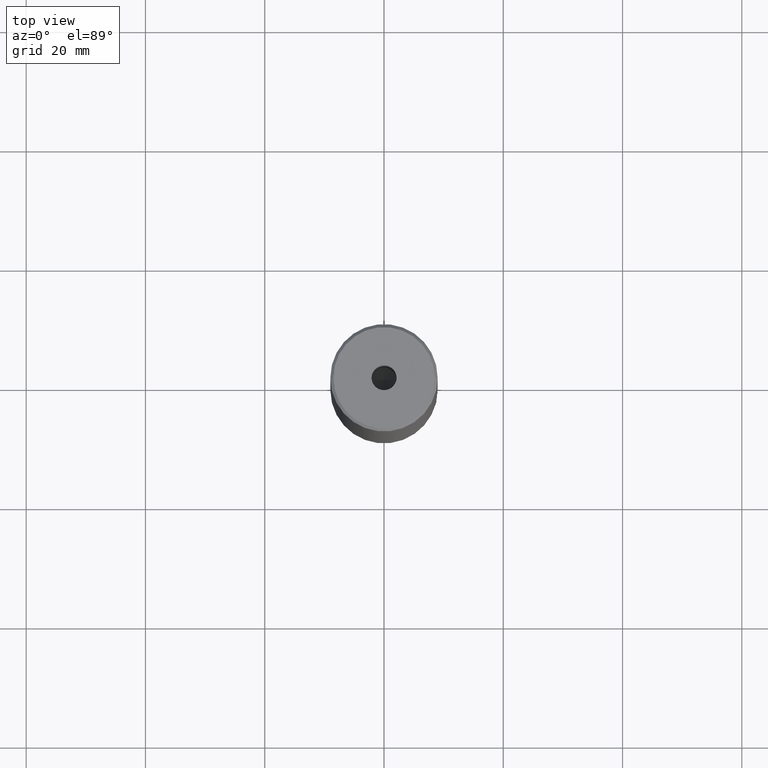
[diagram: clean part render]
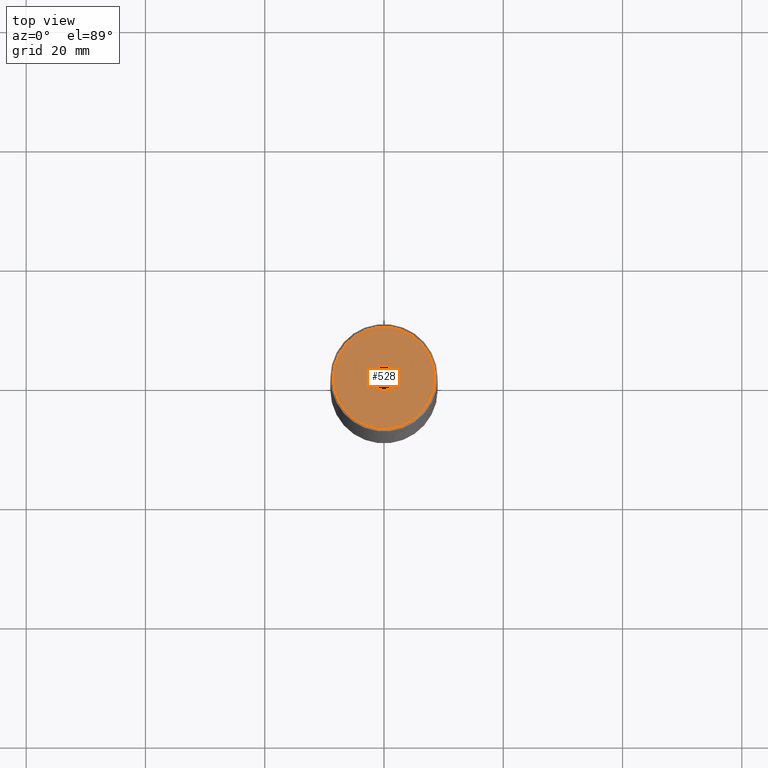
[diagram: same view with one face highlighted and labeled with its STEP entity id]
A machine part, top view. The second image highlights one B-rep face of the part: STEP entity #528.
In plain terms, the highlighted planar face has unit normal (0, -0, 1).
Its self-contained STEP definition (entity closure, byte-faithful):
#20 = EDGE_CURVE ( 'NONE', #493, #152, #571, .T. ) ;
#40 = AXIS2_PLACEMENT_3D ( 'NONE', #140, #500, #90 ) ;
#66 = CARTESIAN_POINT ( 'NONE',  ( 0.000000000000000000, 0.000000000000000000, -1.990051048614449116E-16 ) ) ;
#81 = ORIENTED_EDGE ( 'NONE', *, *, #442, .T. ) ;
#90 = DIRECTION ( 'NONE',  ( 1.000000000000000000, 0.000000000000000000, 0.000000000000000000 ) ) ;
#100 = EDGE_LOOP ( 'NONE', ( #120, #336 ) ) ;
#109 = DIRECTION ( 'NONE',  ( 1.000000000000000000, 0.000000000000000000, 0.000000000000000000 ) ) ;
#120 = ORIENTED_EDGE ( 'NONE', *, *, #285, .F. ) ;
#129 = CARTESIAN_POINT ( 'NONE',  ( 0.000000000000000000, 0.000000000000000000, 0.000000000000000000 ) ) ;
#139 = DIRECTION ( 'NONE',  ( 1.000000000000000000, 0.000000000000000000, 0.000000000000000000 ) ) ;
#140 = CARTESIAN_POINT ( 'NONE',  ( 0.000000000000000000, 0.000000000000000000, 0.000000000000000000 ) ) ;
#152 = VERTEX_POINT ( 'NONE', #236 ) ;
#153 = CIRCLE ( 'NONE', #234, 8.499999999999992895 ) ;
#190 = DIRECTION ( 'NONE',  ( -0.000000000000000000, -0.000000000000000000, 1.000000000000000000 ) ) ;
#195 = CARTESIAN_POINT ( 'NONE',  ( 2.099999999999998757, 0.000000000000000000, -1.990051048614449116E-16 ) ) ;
#199 = VERTEX_POINT ( 'NONE', #517 ) ;
#216 = AXIS2_PLACEMENT_3D ( 'NONE', #129, #499, #139 ) ;
#218 = EDGE_LOOP ( 'NONE', ( #81, #308 ) ) ;
#225 = PLANE ( 'NONE',  #216 ) ;
#234 = AXIS2_PLACEMENT_3D ( 'NONE', #261, #522, #109 ) ;
#236 = CARTESIAN_POINT ( 'NONE',  ( -8.499999999999992895, 0.000000000000000000, 0.000000000000000000 ) ) ;
#261 = CARTESIAN_POINT ( 'NONE',  ( 0.000000000000000000, 0.000000000000000000, 0.000000000000000000 ) ) ;
#276 = DIRECTION ( 'NONE',  ( 1.000000000000000000, 0.000000000000000000, 0.000000000000000000 ) ) ;
#285 = EDGE_CURVE ( 'NONE', #296, #199, #471, .T. ) ;
#296 = VERTEX_POINT ( 'NONE', #195 ) ;
#302 = AXIS2_PLACEMENT_3D ( 'NONE', #66, #190, #514 ) ;
#308 = ORIENTED_EDGE ( 'NONE', *, *, #20, .T. ) ;
#336 = ORIENTED_EDGE ( 'NONE', *, *, #580, .F. ) ;
#368 = AXIS2_PLACEMENT_3D ( 'NONE', #496, #540, #276 ) ;
#402 = CARTESIAN_POINT ( 'NONE',  ( 8.499999999999992895, 1.071565949253933532E-15, 0.000000000000000000 ) ) ;
#442 = EDGE_CURVE ( 'NONE', #152, #493, #153, .T. ) ;
#471 = CIRCLE ( 'NONE', #302, 2.099999999999998757 ) ;
#492 = FACE_BOUND ( 'NONE', #100, .T. ) ;
#493 = VERTEX_POINT ( 'NONE', #402 ) ;
#496 = CARTESIAN_POINT ( 'NONE',  ( 0.000000000000000000, 0.000000000000000000, -1.990051048614449116E-16 ) ) ;
#499 = DIRECTION ( 'NONE',  ( 0.000000000000000000, -0.000000000000000000, 1.000000000000000000 ) ) ;
#500 = DIRECTION ( 'NONE',  ( -0.000000000000000000, -0.000000000000000000, 1.000000000000000000 ) ) ;
#514 = DIRECTION ( 'NONE',  ( 1.000000000000000000, 0.000000000000000000, 0.000000000000000000 ) ) ;
#517 = CARTESIAN_POINT ( 'NONE',  ( -2.099999999999998757, 2.571758278209440478E-16, -1.990051048614449116E-16 ) ) ;
#522 = DIRECTION ( 'NONE',  ( -0.000000000000000000, -0.000000000000000000, 1.000000000000000000 ) ) ;
#528 = ADVANCED_FACE ( 'NONE', ( #492, #548 ), #225, .T. ) ;
#540 = DIRECTION ( 'NONE',  ( -0.000000000000000000, -0.000000000000000000, 1.000000000000000000 ) ) ;
#547 = CIRCLE ( 'NONE', #368, 2.099999999999998757 ) ;
#548 = FACE_OUTER_BOUND ( 'NONE', #218, .T. ) ;
#571 = CIRCLE ( 'NONE', #40, 8.499999999999992895 ) ;
#580 = EDGE_CURVE ( 'NONE', #199, #296, #547, .T. ) ;